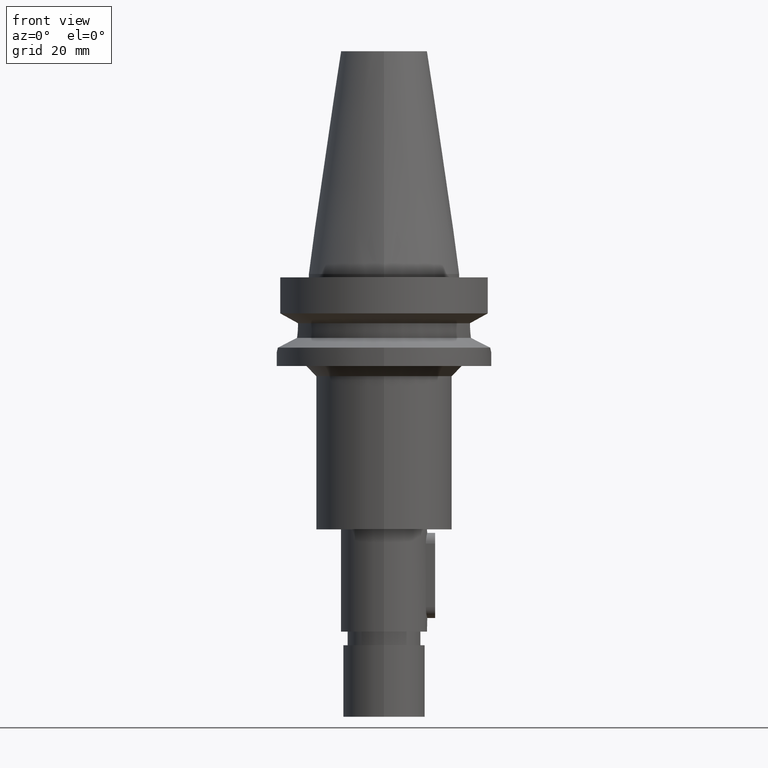
[diagram: clean part render]
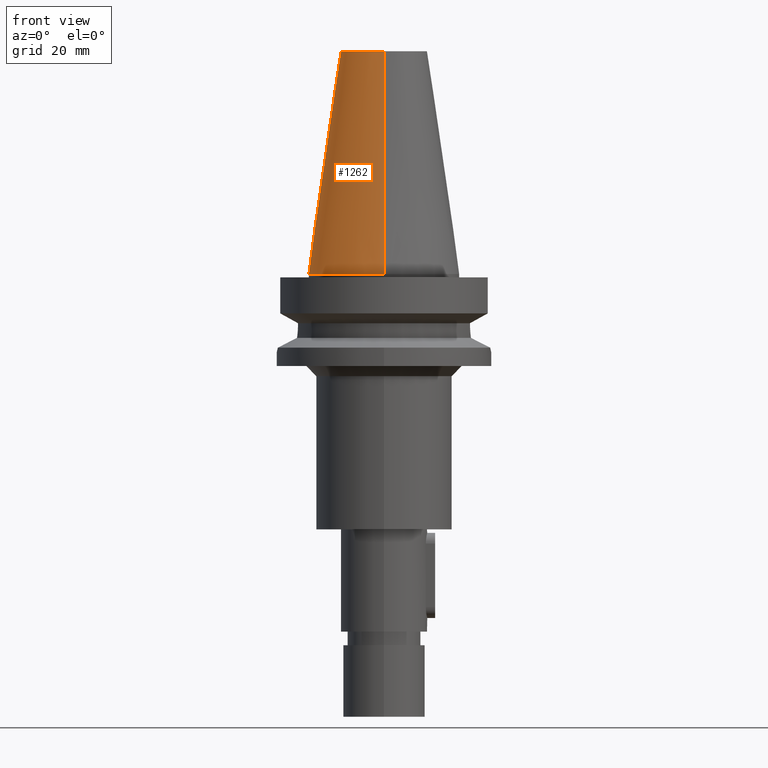
[diagram: same view with one face highlighted and labeled with its STEP entity id]
A machine part, front view. The second image highlights one B-rep face of the part: STEP entity #1262.
In plain terms, the highlighted conical surface has half-angle 8.297 deg.
Its self-contained STEP definition (entity closure, byte-faithful):
#17=CARTESIAN_POINT('',(0.E0,1.625106302469E-14,6.54E1));
#18=DIRECTION('',(0.E0,0.E0,-1.E0));
#19=DIRECTION('',(0.E0,-1.E0,0.E0));
#20=AXIS2_PLACEMENT_3D('',#17,#18,#19);
#50=DIRECTION('',(0.E0,-1.443043893540E-1,-9.895333461856E-1));
#51=VECTOR('',#50,6.609175956738E1);
#52=CARTESIAN_POINT('',(0.E0,-1.268766899430E1,6.54E1));
#53=LINE('',#52,#51);
#57=CARTESIAN_POINT('',(0.E0,1.625106302469E-14,2.842170943040E-14));
#58=DIRECTION('',(0.E0,0.E0,-1.E0));
#59=DIRECTION('',(0.E0,-1.E0,0.E0));
#60=AXIS2_PLACEMENT_3D('',#57,#58,#59);
#65=DIRECTION('',(0.E0,1.443043893540E-1,-9.895333461856E-1));
#66=VECTOR('',#65,6.609175956738E1);
#67=CARTESIAN_POINT('',(0.E0,1.268766899430E1,6.54E1));
#68=LINE('',#67,#66);
#1064=CARTESIAN_POINT('',(0.E0,-1.268766899430E1,6.54E1));
#1065=CARTESIAN_POINT('',(0.E0,1.268766899430E1,6.54E1));
#1066=VERTEX_POINT('',#1064);
#1067=VERTEX_POINT('',#1065);
#1084=CARTESIAN_POINT('',(0.E0,2.2225E1,7.105427357601E-14));
#1085=VERTEX_POINT('',#1084);
#1086=CARTESIAN_POINT('',(0.E0,-2.2225E1,7.105427357601E-14));
#1087=VERTEX_POINT('',#1086);
#1248=CARTESIAN_POINT('',(0.E0,1.625106302469E-14,3.27E1));
#1249=DIRECTION('',(0.E0,0.E0,-1.E0));
#1250=DIRECTION('',(0.E0,-1.E0,0.E0));
#1251=AXIS2_PLACEMENT_3D('',#1248,#1249,#1250);
#1252=CONICAL_SURFACE('',#1251,1.745633449715E1,8.297E0);
#1254=ORIENTED_EDGE('',*,*,#1253,.F.);
#1255=ORIENTED_EDGE('',*,*,#1235,.F.);
#1257=ORIENTED_EDGE('',*,*,#1256,.T.);
#1259=ORIENTED_EDGE('',*,*,#1258,.T.);
#1260=EDGE_LOOP('',(#1254,#1255,#1257,#1259));
#1261=FACE_OUTER_BOUND('',#1260,.F.);
#21=CIRCLE('',#20,1.268766899430E1);
#61=CIRCLE('',#60,2.2225E1);
#1235=EDGE_CURVE('',#1066,#1067,#21,.T.);
#1253=EDGE_CURVE('',#1067,#1085,#68,.T.);
#1256=EDGE_CURVE('',#1066,#1087,#53,.T.);
#1258=EDGE_CURVE('',#1087,#1085,#61,.T.);
#1262=ADVANCED_FACE('',(#1261),#1252,.T.);